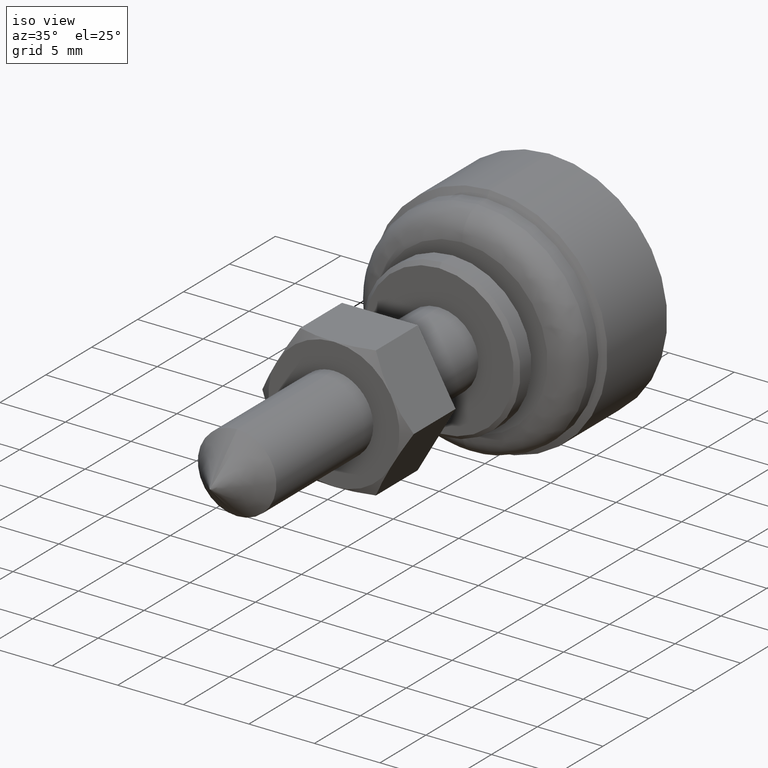
[diagram: clean part render]
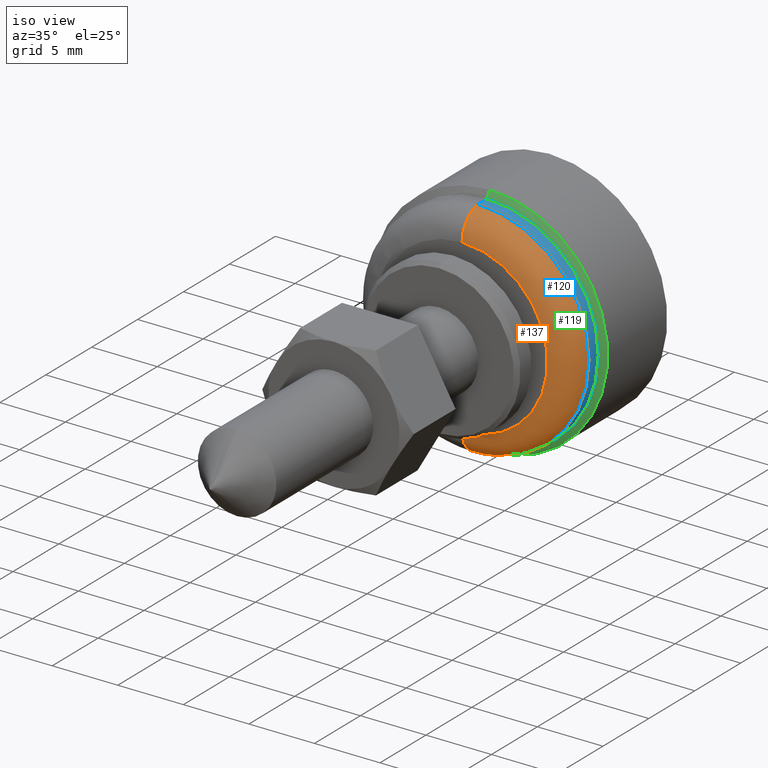
[diagram: same view with three faces highlighted in distinct colors, each labeled with its STEP entity id]
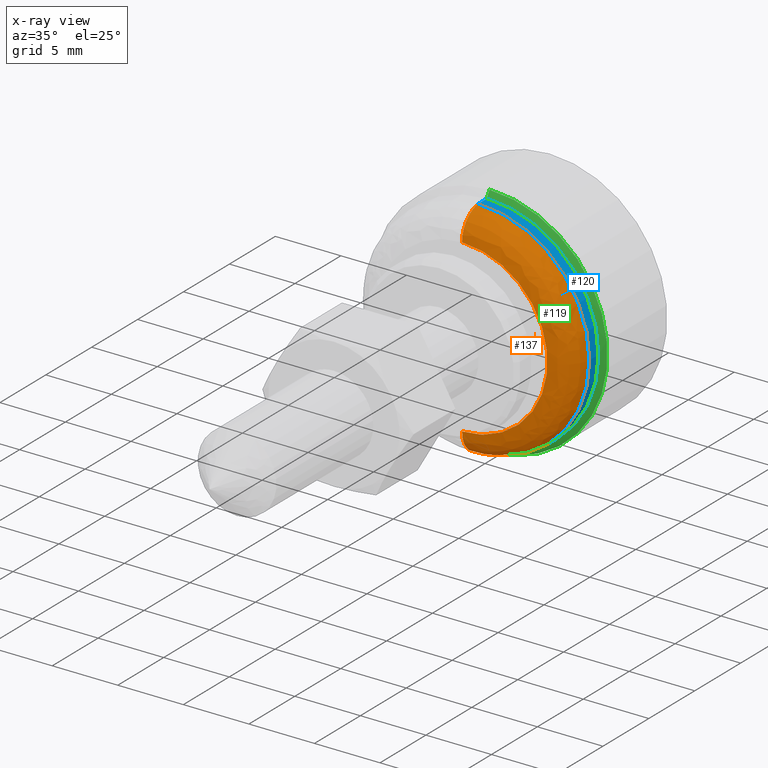
[diagram: x-ray of the same camera — body ghosted, the three highlighted faces saturated]
A machine part, iso view with three faces highlighted in distinct colors.
The next image is the same camera in x-ray (body ghosted, the three faces saturated) — at least one of them is partly hidden behind the body in this view.
Their STEP definitions:

[orange] entity #137 — the highlighted face is a freeform B-spline surface patch.
#137=ADVANCED_FACE('',(#408),#407,.T.);
#407=( BOUNDED_SURFACE() B_SPLINE_SURFACE( 2,2,((#818,#819,#820,#821,#822),(#823,#824,#825,#826,#827),(#828,#829,#830,#831,#832),(#833,#834,#835,#836,#837),(#838,#839,#840,#841,#842)), .UNSPECIFIED.,.F.,.F.,.F.) B_SPLINE_SURFACE_WITH_KNOTS((3,2,3),(3,2,3),(0.00000000000E+00,5.00000000000E-01,1.00000000000E+00),(0.00000000000E+00,5.00000000000E-01,1.00000000000E+00), .UNSPECIFIED. ) GEOMETRIC_REPRESENTATION_ITEM() RATIONAL_B_SPLINE_SURFACE(((1.00000000000E+00,7.58257104017E-01,1.00000000000E+00,7.58257104017E-01,1.00000000000E+00),(7.07106781187E-01,5.36168740133E-01,7.07106781187E-01,5.36168740133E-01,7.07106781187E-01),(1.00000000000E+00,7.58257104017E-01,1.00000000000E+00,7.58257104017E-01,1.00000000000E+00),(7.07106781187E-01,5.36168740133E-01,7.07106781187E-01,5.36168740133E-01,7.07106781187E-01),(1.00000000000E+00,7.58257104017E-01,1.00000000000E+00,7.58257104017E-01,1.00000000000E+00))) REPRESENTATION_ITEM('') SURFACE() );
#408=FACE_OUTER_BOUND('',#843,.T.);
#818=CARTESIAN_POINT('',(-1.83832091081E-20,2.92001846568E+01,4.54520000000E+00));
#819=CARTESIAN_POINT('',(-1.94258235741E-20,2.75000000000E+01,4.80298367874E+00));
#820=CARTESIAN_POINT('',(-2.63808676688E-20,2.75000000000E+01,6.52260000000E+00));
#821=CARTESIAN_POINT('',(-3.33359117635E-20,2.75000000000E+01,8.24221632126E+00));
#822=CARTESIAN_POINT('',(-3.43785262296E-20,2.92001846568E+01,8.50000000000E+00));
#823=CARTESIAN_POINT('',(4.54520000000E+00,2.92001846568E+01,4.54520000000E+00));
#824=CARTESIAN_POINT('',(4.80298367874E+00,2.75000000000E+01,4.80298367874E+00));
#825=CARTESIAN_POINT('',(6.52260000000E+00,2.75000000000E+01,6.52260000000E+00));
#826=CARTESIAN_POINT('',(8.24221632126E+00,2.75000000000E+01,8.24221632126E+00));
#827=CARTESIAN_POINT('',(8.50000000000E+00,2.92001846568E+01,8.50000000000E+00));
#828=CARTESIAN_POINT('',(4.54520000000E+00,2.92001846568E+01,2.78331614783E-16));
#829=CARTESIAN_POINT('',(4.80298367874E+00,2.75000000000E+01,2.94117355250E-16));
#830=CARTESIAN_POINT('',(6.52260000000E+00,2.75000000000E+01,3.99420441474E-16));
#831=CARTESIAN_POINT('',(8.24221632126E+00,2.75000000000E+01,5.04723527697E-16));
#832=CARTESIAN_POINT('',(8.50000000000E+00,2.92001846568E+01,5.20509268164E-16));
#833=CARTESIAN_POINT('',(4.54520000000E+00,2.92001846568E+01,-4.54520000000E+00));
#834=CARTESIAN_POINT('',(4.80298367874E+00,2.75000000000E+01,-4.80298367874E+00));
#835=CARTESIAN_POINT('',(6.52260000000E+00,2.75000000000E+01,-6.52260000000E+00));
#836=CARTESIAN_POINT('',(8.24221632126E+00,2.75000000000E+01,-8.24221632126E+00));
#837=CARTESIAN_POINT('',(8.50000000000E+00,2.92001846568E+01,-8.50000000000E+00));
#838=CARTESIAN_POINT('',(5.56644846358E-16,2.92001846568E+01,-4.54520000000E+00));
#839=CARTESIAN_POINT('',(5.88215284676E-16,2.75000000000E+01,-4.80298367874E+00));
#840=CARTESIAN_POINT('',(7.98814502080E-16,2.75000000000E+01,-6.52260000000E+00));
#841=CARTESIAN_POINT('',(1.00941371948E-15,2.75000000000E+01,-8.24221632126E+00));
#842=CARTESIAN_POINT('',(1.04098415780E-15,2.92001846568E+01,-8.50000000000E+00));
#843=EDGE_LOOP('',(#1034,#1035,#1036,#1037));
#1034=ORIENTED_EDGE('',*,*,#1125,.T.);
#1035=ORIENTED_EDGE('',*,*,#1162,.T.);
#1036=ORIENTED_EDGE('',*,*,#1138,.F.);
#1037=ORIENTED_EDGE('',*,*,#1163,.F.);
#1125=EDGE_CURVE('',#1273,#1272,#1280,.T.);
#1138=EDGE_CURVE('',#1367,#1368,#1369,.T.);
#1162=EDGE_CURVE('',#1272,#1368,#1519,.T.);
#1163=EDGE_CURVE('',#1273,#1367,#1525,.T.);
#1272=VERTEX_POINT('',#1833);
#1273=VERTEX_POINT('',#1834);
#1280=CIRCLE('',#1842,6.52260000000E+00);
#1367=VERTEX_POINT('',#1892);
#1368=VERTEX_POINT('',#1893);
#1369=CIRCLE('',#1897,8.50000000000E+00);
#1519=(BOUNDED_CURVE() B_SPLINE_CURVE(2,(#1967,#1968,#1969),.UNSPECIFIED.,.F.,.F.) B_SPLINE_CURVE_WITH_KNOTS((3,3),(5.00000000000E-01,1.00000000000E+00),.UNSPECIFIED.) CURVE() GEOMETRIC_REPRESENTATION_ITEM() RATIONAL_B_SPLINE_CURVE((1.00000000000E+00,7.58257104017E-01,1.00000000000E+00)) REPRESENTATION_ITEM('') );
#1525=(BOUNDED_CURVE() B_SPLINE_CURVE(3,(#1970,#1971,#1972,#1973,#1974),.UNSPECIFIED.,.F.,.F.) B_SPLINE_CURVE_WITH_KNOTS((4,1,4),(4.99999992628E-01,7.49999995855E-01,1.00000000000E+00),.UNSPECIFIED.) CURVE() GEOMETRIC_REPRESENTATION_ITEM() RATIONAL_B_SPLINE_CURVE((1.00000000000E+00,1.00000000000E+00,1.00000000000E+00,1.00000000000E+00,1.00000000000E+00)) REPRESENTATION_ITEM('') );
#1833=CARTESIAN_POINT('',(2.96059473233E-16,2.75000000000E+01,-6.52260000000E+00));
#1834=CARTESIAN_POINT('',(0.00000000000E+00,2.75000000000E+01,6.52260000000E+00));
#1839=CARTESIAN_POINT('',(0.00000000000E+00,2.75000000000E+01,0.00000000000E+00));
#1840=DIRECTION('',(0.00000000000E+00,1.00000000000E+00,-0.00000000000E+00));
#1841=DIRECTION('',(-1.22460635382E-16,0.00000000000E+00,1.00000000000E+00));
#1842=AXIS2_PLACEMENT_3D('',#1839,#1840,#1841);
#1892=CARTESIAN_POINT('',(0.00000000000E+00,2.92001846568E+01,8.50000000000E+00));
#1893=CARTESIAN_POINT('',(5.92118946467E-16,2.92001846568E+01,-8.50000000000E+00));
#1894=CARTESIAN_POINT('',(0.00000000000E+00,2.92001846568E+01,0.00000000000E+00));
#1895=DIRECTION('',(0.00000000000E+00,1.00000000000E+00,-0.00000000000E+00));
#1896=DIRECTION('',(-1.22460635382E-16,0.00000000000E+00,1.00000000000E+00));
#1897=AXIS2_PLACEMENT_3D('',#1894,#1895,#1896);
#1967=CARTESIAN_POINT('',(-7.98761740344E-16,2.75000000000E+01,-6.52260000000E+00));
#1968=CARTESIAN_POINT('',(-1.00934704766E-15,2.75000000000E+01,-8.24221632126E+00));
#1969=CARTESIAN_POINT('',(-1.04091540075E-15,2.92001846568E+01,-8.50000000000E+00));
#1970=CARTESIAN_POINT('',(5.92118950688E-16,2.75000000000E+01,6.52259996155E+00));
#1971=CARTESIAN_POINT('',(7.49483681531E-16,2.74970487323E+01,6.99246000781E+00));
#1972=CARTESIAN_POINT('',(1.17666442912E-15,2.78508513861E+01,7.94055140725E+00));
#1973=CARTESIAN_POINT('',(1.61189338539E-15,2.87351916110E+01,8.43248228378E+00));
#1974=CARTESIAN_POINT('',(1.77635683940E-15,2.92001846568E+01,8.50000000000E+00));

[blue] entity #120 — the highlighted cylindrical surface (partial cylindrical patch) has radius 8.5 mm, axis along (0, -1, 0).
#120=ADVANCED_FACE('',(#238),#237,.T.);
#237=CYLINDRICAL_SURFACE('',#649,8.50000000000E+00);
#238=FACE_OUTER_BOUND('',#650,.T.);
#646=CARTESIAN_POINT('',(0.00000000000E+00,0.00000000000E+00,0.00000000000E+00));
#647=DIRECTION('',(0.00000000000E+00,-1.00000000000E+00,-0.00000000000E+00));
#648=DIRECTION('',(0.00000000000E+00,0.00000000000E+00,-1.00000000000E+00));
#649=AXIS2_PLACEMENT_3D('',#646,#647,#648);
#650=EDGE_LOOP('',(#966,#967,#968,#969));
#966=ORIENTED_EDGE('',*,*,#1138,.T.);
#967=ORIENTED_EDGE('',*,*,#1139,.F.);
#968=ORIENTED_EDGE('',*,*,#1136,.F.);
#969=ORIENTED_EDGE('',*,*,#1140,.T.);
#1136=EDGE_CURVE('',#1342,#1335,#1355,.T.);
#1138=EDGE_CURVE('',#1367,#1368,#1369,.T.);
#1139=EDGE_CURVE('',#1335,#1368,#1375,.T.);
#1140=EDGE_CURVE('',#1342,#1367,#1381,.T.);
#1335=VERTEX_POINT('',#1874);
#1342=VERTEX_POINT('',#1877);
#1355=CIRCLE('',#1887,8.50000000000E+00);
#1367=VERTEX_POINT('',#1892);
#1368=VERTEX_POINT('',#1893);
#1369=CIRCLE('',#1897,8.50000000000E+00);
#1375=(BOUNDED_CURVE() B_SPLINE_CURVE(1,(#1898,#1899),.UNSPECIFIED.,.F.,.F.) B_SPLINE_CURVE_WITH_KNOTS((2,2),(8.33332935974E-02,9.16666633252E-01),.UNSPECIFIED.) CURVE() GEOMETRIC_REPRESENTATION_ITEM() RATIONAL_B_SPLINE_CURVE((1.00000000000E+00,1.00000000000E+00)) REPRESENTATION_ITEM('') );
#1381=(BOUNDED_CURVE() B_SPLINE_CURVE(1,(#1900,#1901),.UNSPECIFIED.,.F.,.F.) B_SPLINE_CURVE_WITH_KNOTS((2,2),(8.33333333333E-02,9.16666666667E-01),.UNSPECIFIED.) CURVE() GEOMETRIC_REPRESENTATION_ITEM() RATIONAL_B_SPLINE_CURVE((7.50000000000E-01,7.50000000000E-01)) REPRESENTATION_ITEM('') );
#1874=CARTESIAN_POINT('',(5.92118946467E-16,3.02000000000E+01,-8.50000000000E+00));
#1877=CARTESIAN_POINT('',(0.00000000000E+00,3.02000000000E+01,8.50000000000E+00));
#1884=CARTESIAN_POINT('',(0.00000000000E+00,3.02000000000E+01,0.00000000000E+00));
#1885=DIRECTION('',(0.00000000000E+00,1.00000000000E+00,-0.00000000000E+00));
#1886=DIRECTION('',(-1.22460635382E-16,0.00000000000E+00,1.00000000000E+00));
#1887=AXIS2_PLACEMENT_3D('',#1884,#1885,#1886);
#1892=CARTESIAN_POINT('',(0.00000000000E+00,2.92001846568E+01,8.50000000000E+00));
#1893=CARTESIAN_POINT('',(5.92118946467E-16,2.92001846568E+01,-8.50000000000E+00));
#1894=CARTESIAN_POINT('',(0.00000000000E+00,2.92001846568E+01,0.00000000000E+00));
#1895=DIRECTION('',(0.00000000000E+00,1.00000000000E+00,-0.00000000000E+00));
#1896=DIRECTION('',(-1.22460635382E-16,0.00000000000E+00,1.00000000000E+00));
#1897=AXIS2_PLACEMENT_3D('',#1894,#1895,#1896);
#1898=CARTESIAN_POINT('',(0.00000000000E+00,3.02000000477E+01,-8.50000000000E+00));
#1899=CARTESIAN_POINT('',(0.00000000000E+00,2.92001846969E+01,-8.50000000000E+00));
#1900=CARTESIAN_POINT('',(-5.92118946467E-16,3.02000000000E+01,8.50000000000E+00));
#1901=CARTESIAN_POINT('',(-5.92118946467E-16,2.92001846568E+01,8.50000000000E+00));

[green] entity #119 — the highlighted face is a freeform B-spline surface patch.
#119=ADVANCED_FACE('',(#228),#227,.T.);
#227=( BOUNDED_SURFACE() B_SPLINE_SURFACE( 2,1,((#635,#636),(#637,#638),(#639,#640),(#641,#642),(#643,#644)), .UNSPECIFIED.,.F.,.F.,.F.) B_SPLINE_SURFACE_WITH_KNOTS((3,2,3),(2,2),(0.00000000000E+00,5.00000000000E-01,1.00000000000E+00),(0.00000000000E+00,1.00000000000E+00), .UNSPECIFIED. ) GEOMETRIC_REPRESENTATION_ITEM() RATIONAL_B_SPLINE_SURFACE(((1.00000000000E+00,1.00000000000E+00),(7.07106781187E-01,7.07106781187E-01),(1.00000000000E+00,1.00000000000E+00),(7.07106781187E-01,7.07106781187E-01),(1.00000000000E+00,1.00000000000E+00))) REPRESENTATION_ITEM('') SURFACE() );
#228=FACE_OUTER_BOUND('',#645,.T.);
#635=CARTESIAN_POINT('',(0.00000000000E+00,2.51000000000E+01,0.00000000000E+00));
#636=CARTESIAN_POINT('',(1.55872090122E-15,3.27367532368E+01,1.27279220614E+01));
#637=CARTESIAN_POINT('',(0.00000000000E+00,2.51000000000E+01,0.00000000000E+00));
#638=CARTESIAN_POINT('',(1.27279220614E+01,3.27367532368E+01,1.27279220614E+01));
#639=CARTESIAN_POINT('',(0.00000000000E+00,2.51000000000E+01,0.00000000000E+00));
#640=CARTESIAN_POINT('',(1.27279220614E+01,3.27367532368E+01,-7.79360450612E-16));
#641=CARTESIAN_POINT('',(0.00000000000E+00,2.51000000000E+01,0.00000000000E+00));
#642=CARTESIAN_POINT('',(1.27279220614E+01,3.27367532368E+01,-1.27279220614E+01));
#643=CARTESIAN_POINT('',(0.00000000000E+00,2.51000000000E+01,0.00000000000E+00));
#644=CARTESIAN_POINT('',(0.00000000000E+00,3.27367532368E+01,-1.27279220614E+01));
#645=EDGE_LOOP('',(#962,#963,#964,#965));
#962=ORIENTED_EDGE('',*,*,#1136,.T.);
#963=ORIENTED_EDGE('',*,*,#1133,.T.);
#964=ORIENTED_EDGE('',*,*,#1137,.F.);
#965=ORIENTED_EDGE('',*,*,#1135,.F.);
#1133=EDGE_CURVE('',#1335,#1327,#1336,.T.);
#1135=EDGE_CURVE('',#1342,#1328,#1349,.T.);
#1136=EDGE_CURVE('',#1342,#1335,#1355,.T.);
#1137=EDGE_CURVE('',#1328,#1327,#1361,.T.);
#1327=VERTEX_POINT('',#1868);
#1328=VERTEX_POINT('',#1869);
#1335=VERTEX_POINT('',#1874);
#1336=(BOUNDED_CURVE() B_SPLINE_CURVE(1,(#1875,#1876),.UNSPECIFIED.,.F.,.F.) B_SPLINE_CURVE_WITH_KNOTS((2,2),(6.67823073268E-01,7.07106783111E-01),.UNSPECIFIED.) CURVE() GEOMETRIC_REPRESENTATION_ITEM() RATIONAL_B_SPLINE_CURVE((1.00000000000E+00,1.00000000000E+00)) REPRESENTATION_ITEM('') );
#1342=VERTEX_POINT('',#1877);
#1349=(BOUNDED_CURVE() B_SPLINE_CURVE(1,(#1882,#1883),.UNSPECIFIED.,.F.,.F.) B_SPLINE_CURVE_WITH_KNOTS((2,2),(6.67823063948E-01,7.07106773592E-01),.UNSPECIFIED.) CURVE() GEOMETRIC_REPRESENTATION_ITEM() RATIONAL_B_SPLINE_CURVE((7.50000000000E-01,7.50000000000E-01)) REPRESENTATION_ITEM('') );
#1355=CIRCLE('',#1887,8.50000000000E+00);
#1361=CIRCLE('',#1891,9.00000000000E+00);
#1868=CARTESIAN_POINT('',(8.88178419700E-16,3.05000000000E+01,-9.00000000000E+00));
#1869=CARTESIAN_POINT('',(0.00000000000E+00,3.05000000000E+01,9.00000000000E+00));
#1874=CARTESIAN_POINT('',(5.92118946467E-16,3.02000000000E+01,-8.50000000000E+00));
#1875=CARTESIAN_POINT('',(-2.08183080819E-15,3.02000000164E+01,-8.50000002733E+00));
#1876=CARTESIAN_POINT('',(-2.20429144288E-15,3.05000000147E+01,-9.00000002449E+00));
#1877=CARTESIAN_POINT('',(0.00000000000E+00,3.02000000000E+01,8.50000000000E+00));
#1882=CARTESIAN_POINT('',(2.37258413431E-15,3.01999999452E+01,8.49999990870E+00));
#1883=CARTESIAN_POINT('',(2.51214790691E-15,3.04999999420E+01,8.99999990333E+00));
#1884=CARTESIAN_POINT('',(0.00000000000E+00,3.02000000000E+01,0.00000000000E+00));
#1885=DIRECTION('',(0.00000000000E+00,1.00000000000E+00,-0.00000000000E+00));
#1886=DIRECTION('',(-1.22460635382E-16,0.00000000000E+00,1.00000000000E+00));
#1887=AXIS2_PLACEMENT_3D('',#1884,#1885,#1886);
#1888=CARTESIAN_POINT('',(0.00000000000E+00,3.05000000000E+01,0.00000000000E+00));
#1889=DIRECTION('',(0.00000000000E+00,1.00000000000E+00,-0.00000000000E+00));
#1890=DIRECTION('',(-1.22460635382E-16,0.00000000000E+00,1.00000000000E+00));
#1891=AXIS2_PLACEMENT_3D('',#1888,#1889,#1890);